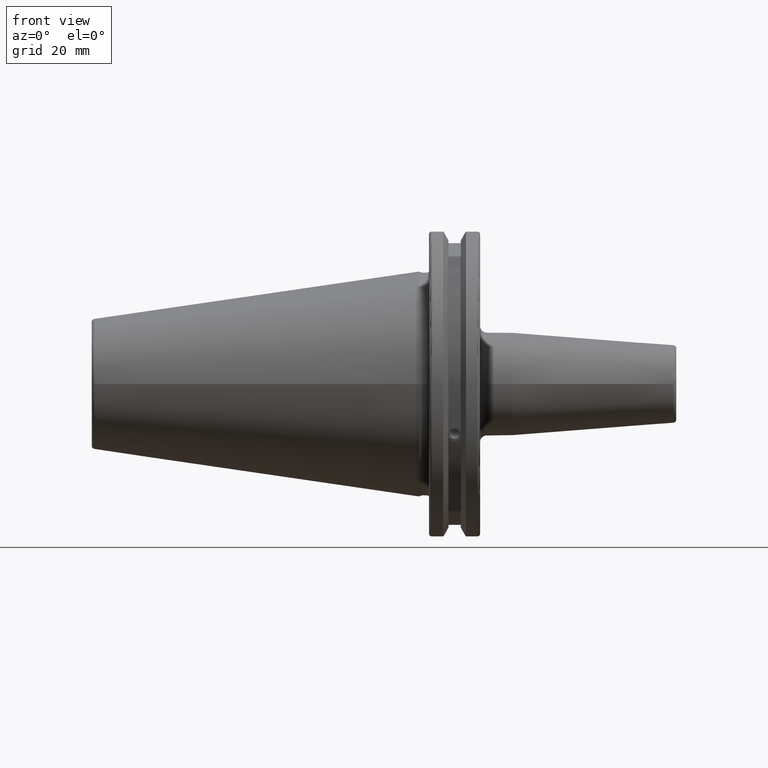
[diagram: clean part render]
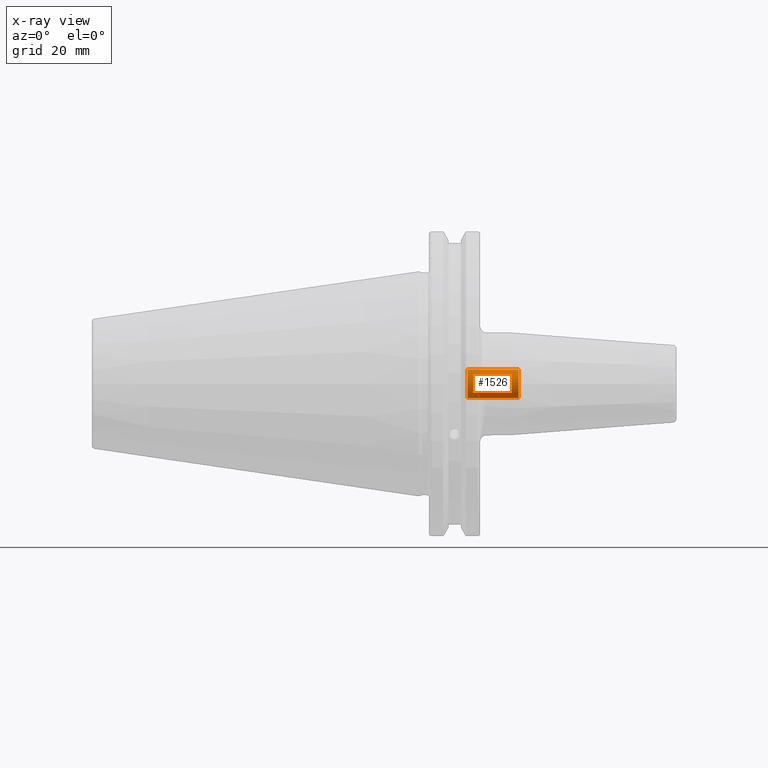
[diagram: x-ray — body ghosted, one internal face saturated and labeled with its STEP entity id]
A machine part, front view, then the same camera in x-ray: the body is ghosted and one INTERNAL B-rep face — a face not visible from any outside direction — is saturated and labeled: STEP entity #1526.
In plain terms, the highlighted cylindrical surface (bore or boss wall) has radius 4.4587 mm, axis along (1, 0, 0).
Its self-contained STEP definition (entity closure, byte-faithful):
#167=FACE_OUTER_BOUND('',#263,.T.);
#263=EDGE_LOOP('',(#1079,#1080,#1081,#1082,#1083));
#372=CIRCLE('',#1661,4.458734);
#373=CIRCLE('',#1663,4.458734);
#374=CIRCLE('',#1664,4.458734);
#448=LINE('',#2329,#542);
#542=VECTOR('',#1894,4.458734);
#653=VERTEX_POINT('',#2325);
#654=VERTEX_POINT('',#2328);
#655=VERTEX_POINT('',#2330);
#818=EDGE_CURVE('',#653,#653,#372,.T.);
#819=EDGE_CURVE('',#653,#654,#448,.T.);
#820=EDGE_CURVE('',#655,#654,#373,.T.);
#821=EDGE_CURVE('',#654,#655,#374,.T.);
#1079=ORIENTED_EDGE('',*,*,#818,.T.);
#1080=ORIENTED_EDGE('',*,*,#819,.T.);
#1081=ORIENTED_EDGE('',*,*,#820,.F.);
#1082=ORIENTED_EDGE('',*,*,#821,.F.);
#1083=ORIENTED_EDGE('',*,*,#819,.F.);
#1487=CYLINDRICAL_SURFACE('',#1662,4.458734);
#1526=ADVANCED_FACE('',(#167),#1487,.F.);
#1661=AXIS2_PLACEMENT_3D('',#2326,#1890,#1891);
#1662=AXIS2_PLACEMENT_3D('',#2327,#1892,#1893);
#1663=AXIS2_PLACEMENT_3D('',#2331,#1895,#1896);
#1664=AXIS2_PLACEMENT_3D('',#2332,#1897,#1898);
#1890=DIRECTION('center_axis',(1.,0.,0.));
#1891=DIRECTION('ref_axis',(0.,0.,-1.));
#1892=DIRECTION('center_axis',(1.,0.,0.));
#1893=DIRECTION('ref_axis',(0.,0.,-1.));
#1894=DIRECTION('',(-1.,0.,0.));
#1895=DIRECTION('center_axis',(1.,0.,0.));
#1896=DIRECTION('ref_axis',(0.,0.,-1.));
#1897=DIRECTION('center_axis',(1.,0.,0.));
#1898=DIRECTION('ref_axis',(0.,0.,-1.));
#2325=CARTESIAN_POINT('',(31.,-5.46037432134947E-16,4.458734));
#2326=CARTESIAN_POINT('Origin',(31.,0.,0.));
#2327=CARTESIAN_POINT('Origin',(-147.228560080512,0.,0.));
#2328=CARTESIAN_POINT('',(15.180173983227,-5.46037432134947E-16,4.458734));
#2329=CARTESIAN_POINT('',(-147.228560080512,-5.46037432134947E-16,4.458734));
#2330=CARTESIAN_POINT('',(15.1801739832271,-5.46037432134947E-16,-4.458734));
#2331=CARTESIAN_POINT('Origin',(15.180173983227,0.,0.));
#2332=CARTESIAN_POINT('Origin',(15.180173983227,0.,0.));